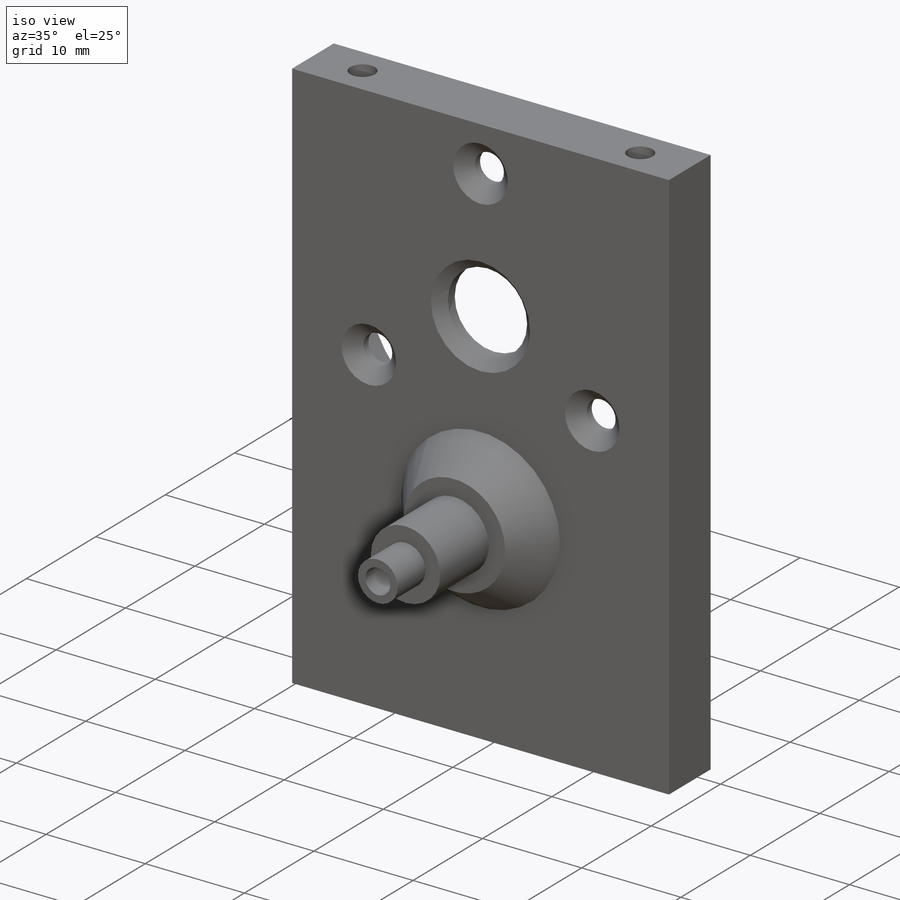
[diagram: iso view]
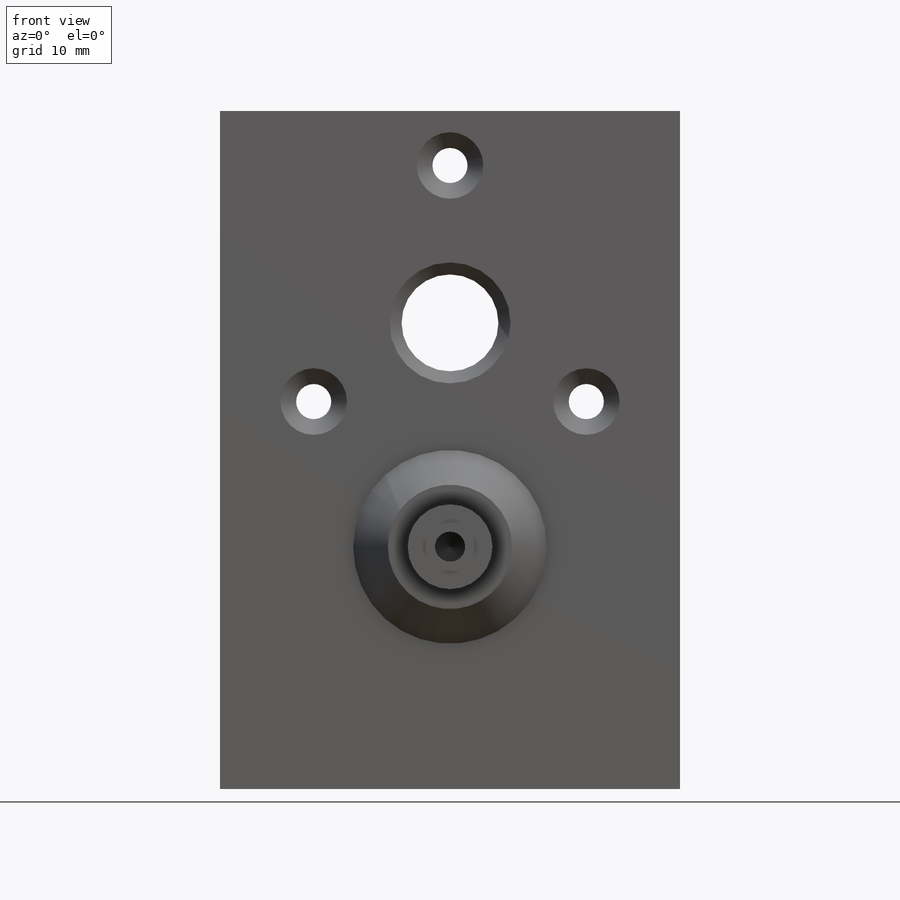
[diagram: front view]
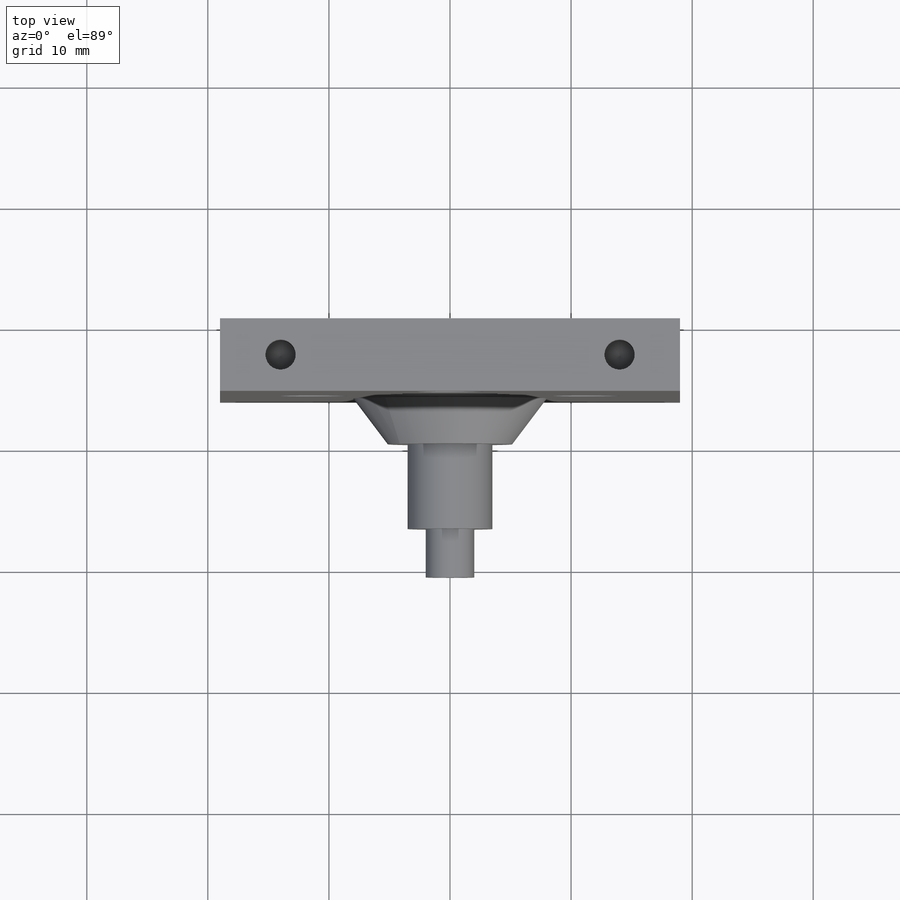
[diagram: top view]
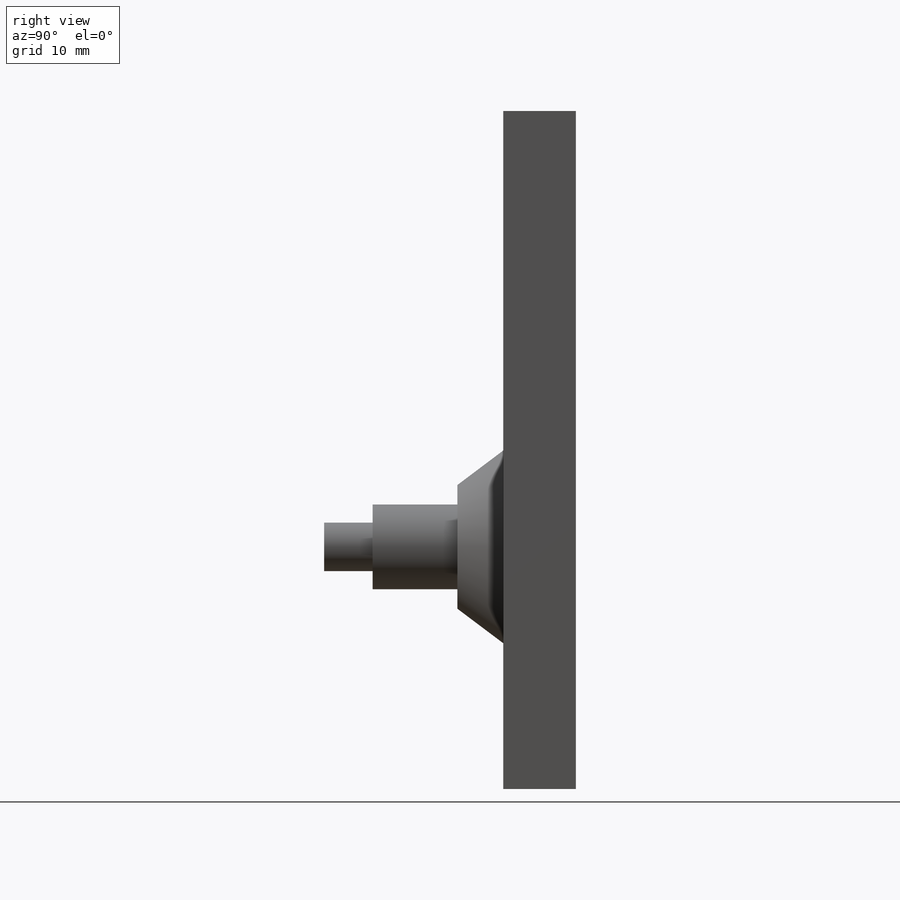
[diagram: right view]
SOLIDWORKS PART (.sldprt)
format: sldprt  version: not decoded by parser v0  size: 443,904 bytes
history: native  units: mm
features: sketch x17, thread x6, extrude x5, hole x4, plane x3, cut_extrude x2, chamfer x2, material x1 (+9 scaffold rows collapsed)
feature tree (49):
  scaffold x9  (default folders/planes/origin — collapsed)
  material  "Material <não especificado>"
  plane  "Plano frontal"
  plane  "Plano superior"
  plane  "Plano direito"
  sketch  "Esboço1"  dims[c1.D6=2.0mm c1.D7=8.0mm c1.D9=8.0mm c1.D10=33.0mm c1.D1=68.0mm c1.D2=38.0mm c1.D3=28.0mm c1.D4=42.0mm c1.D5=14.5mm c2.D6=12.0mm c2.D7=~30.171573mm c2.D8=20.0mm c3.D6=19.0mm c3.D9=19.0mm c3.D4=28.0mm c3.D11=~55.447611mm c4.D6=19.5mm c4.D9=18.0mm c4.D11=38.0mm c4.D12=~65.678643mm c4.D4=56.0mm]
  extrude  "Ressalto-extrusão1"  Depth=6mm
  sketch  "Esboço6"  dims[c1.D1=33.08mm c1.D4=33.0mm c1.D2=18.0mm c1.D3=17.0mm c2.D4=~30.179305mm c2.D2=18.5mm c2.D3=19.0mm]
  cut_extrude  "Corte-extrusão5"  Depth=4mm
  sketch  "Esboço7"  dims[c1.D1=8.0mm c1.D2=2.5mm c1.D6=2.0mm c1.D7=2.5mm c1.D3=13.0mm c1.D5=~6.470828mm c2.D5=120.0deg c2.D6=13.0mm c2.D7=27.0mm c2.D4=3.0]
  cut_extrude  "Corte-extrusão6"  [1 undecoded]
  hole  "Escareado para parafuso de máquina com cabeça chata de M2.51"  Diameter=2.9mm Depth=1.999mm
  sketch  "Esboço9"
  sketch  "Esboço10"  dims[hole-wizard template sketch: 39 standard entries collapsed; hole parameters kept: c13.Hole Dia.=2.9mm c13.Hole Depth=1.999mm c13.Near C'Sink Dia.=5.5mm c13.D4=~33.297463mm c13.Near C'Sink Angle=90.0deg c14.D5=~14.816244mm c14.Drill Angle=118.0deg]
  sketch  "Esboço15"
  extrude  "Ressalto-extrusão2"  [1 undecoded]
  sketch  "Esboço16"
  extrude  "Ressalto-extrusão3"  Depth=5.79mm
  sketch  "Esboço17"  dims[D1=7.0mm]
  extrude  "Ressalto-extrusão4"  Depth=7mm
  sketch  "Esboço18"  dims[D1=4.0mm]
  extrude  "Ressalto-extrusão5"  Depth=4mm
  chamfer  "Chanfro1"  Distance=4mm
  hole  "Furo roscado de M3x0.51"  Diameter=2.5mm Depth=10mm
  sketch  "Esboço22"
  sketch  "Esboço21"  dims[hole-wizard template sketch: 47 standard entries collapsed; hole parameters kept: c15.Tap Drill Depth=10.0mm c15.D3=~14.816244mm c15.Drill Angle=118.0deg]
  thread  "Rosca de furo1"  Diameter=6mm  [1 undecoded]
  sketch  "Esboço29"  dims[D1=12.0mm D2=12.0mm]
  sketch  "Esboço30"  dims[D1=5.0mm D2=5.0mm]
  hole  "Furo roscado de M3x0.52"  Diameter=2.5mm Depth=8.5mm
  sketch  "Esboço32"
  sketch  "Esboço31"  dims[hole-wizard template sketch: 50 standard entries collapsed; hole parameters above]
  thread  "Rosca de furo2"  Diameter=6mm  [1 undecoded]
  thread  "Rosca de furo3"  Diameter=6mm  [1 undecoded]
  thread  "Rosca de furo4"  Diameter=6mm  [1 undecoded]
  hole  "Furo roscado de M3x0.53"  Diameter=2.5mm Depth=6mm
  sketch  "Esboço34"
  sketch  "Esboço33"  dims[hole-wizard template sketch: 50 standard entries collapsed; hole parameters above]
  thread  "Rosca de furo5"  Diameter=6mm  [1 undecoded]
  thread  "Rosca de furo6"  Diameter=6mm  [1 undecoded]
  chamfer  "Chanfro2"  Distance=1mm Angle=45deg
decode coverage: 28 of 36 modeling features carry decoded parameters
note: ~ marks probable driven/reference dimensions
note: 8 parameter values undecoded
summary: Diameter pulled from absorbed wizard sketch
note: suppression state not decoded; provenance and decode notes live in map.json
